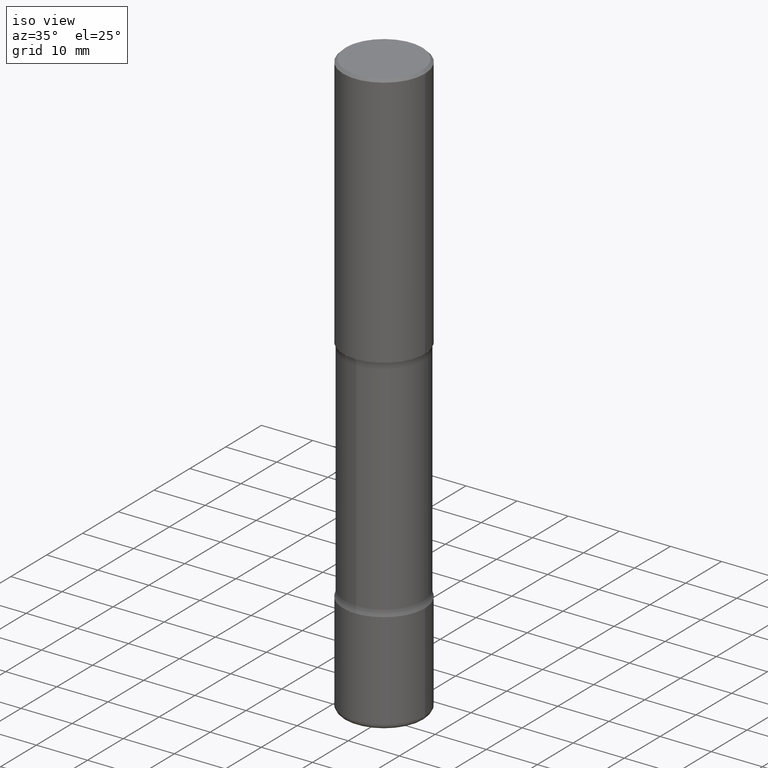
[diagram: clean part render]
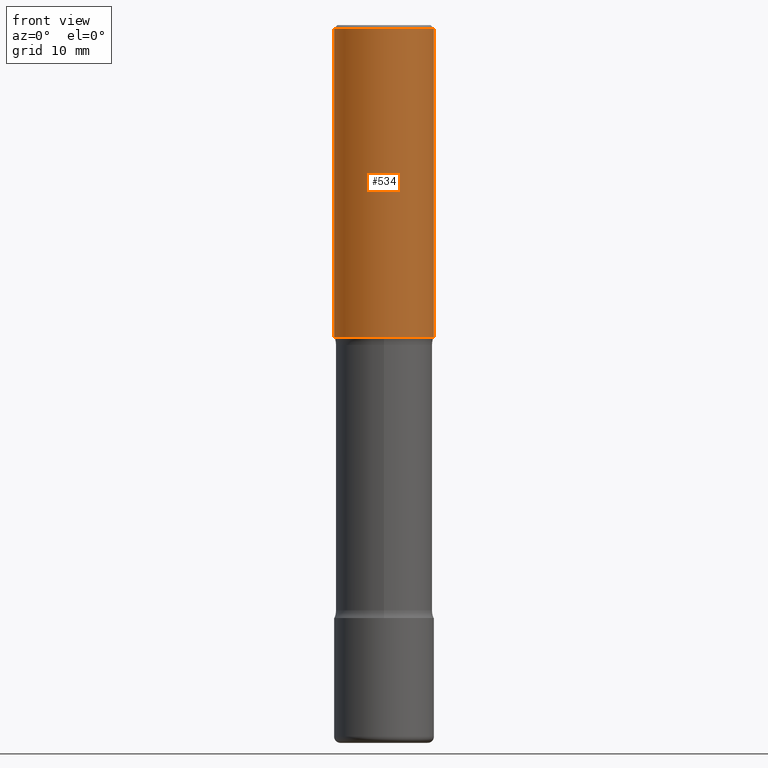
[diagram: tour spotlight — one face highlighted and labeled with its STEP entity id]
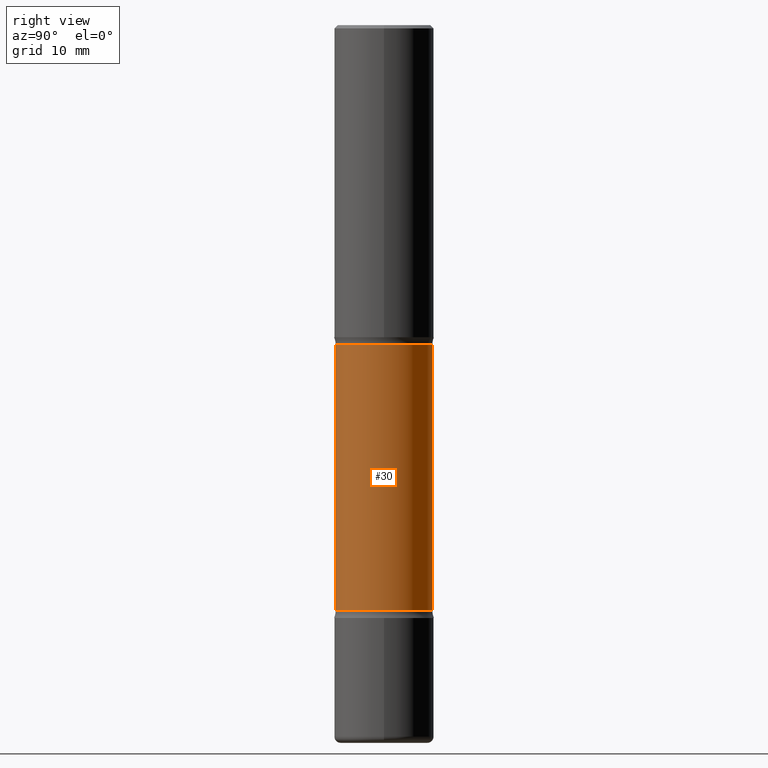
[diagram: tour spotlight — one face highlighted and labeled with its STEP entity id]
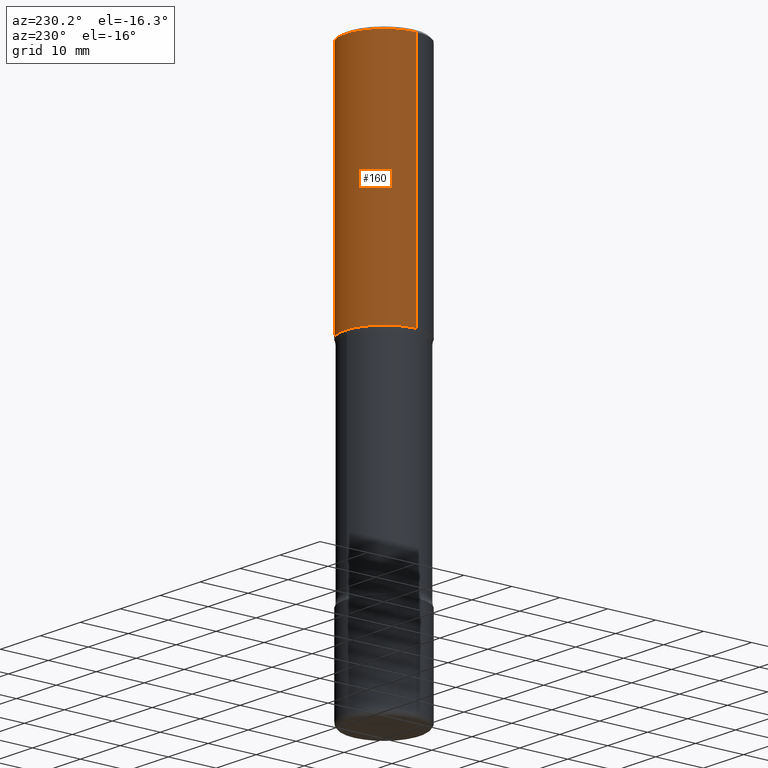
[diagram: tour spotlight — one face highlighted and labeled with its STEP entity id]
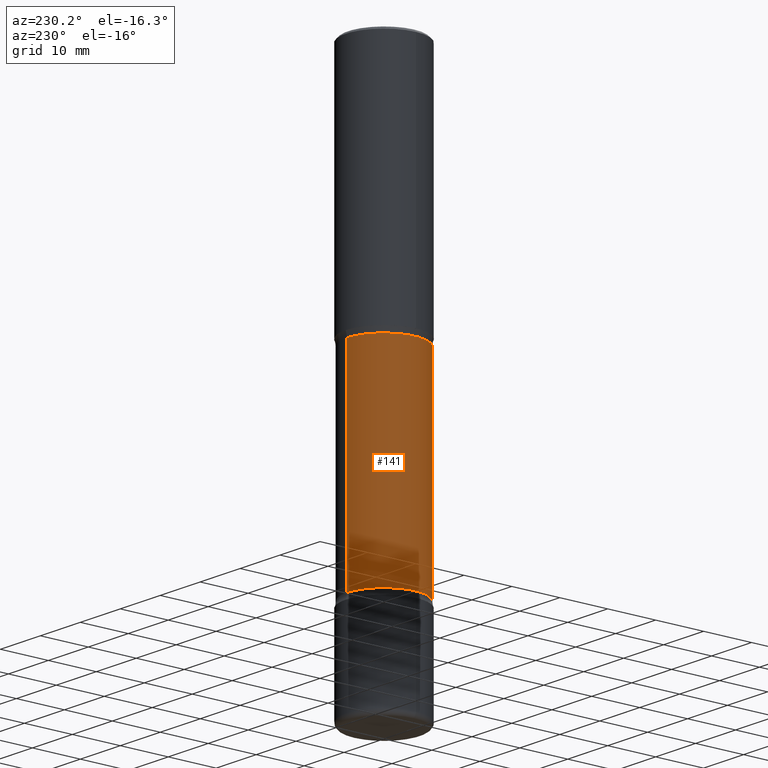
[diagram: tour spotlight — one face highlighted and labeled with its STEP entity id]
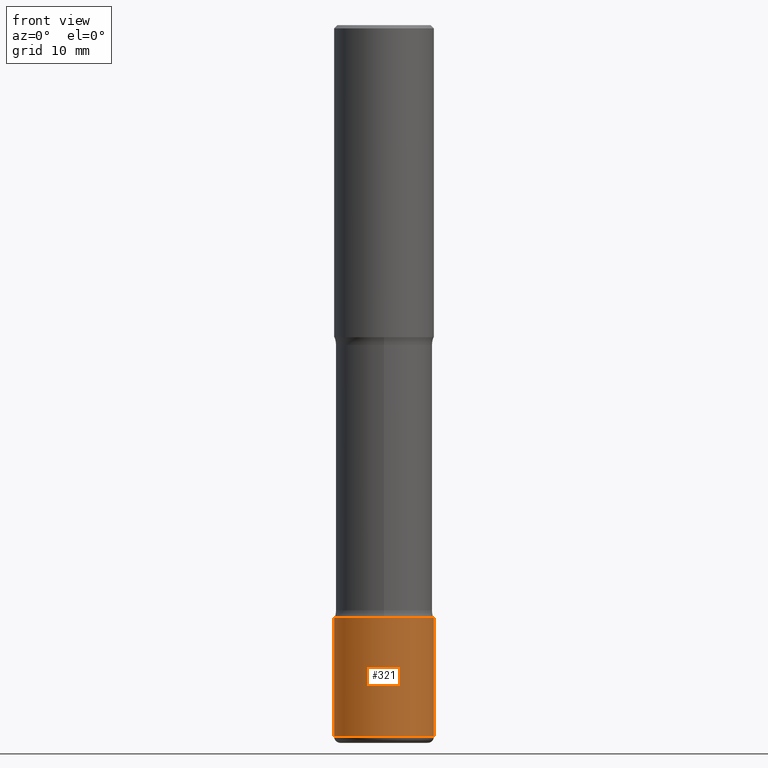
[diagram: tour spotlight — one face highlighted and labeled with its STEP entity id]
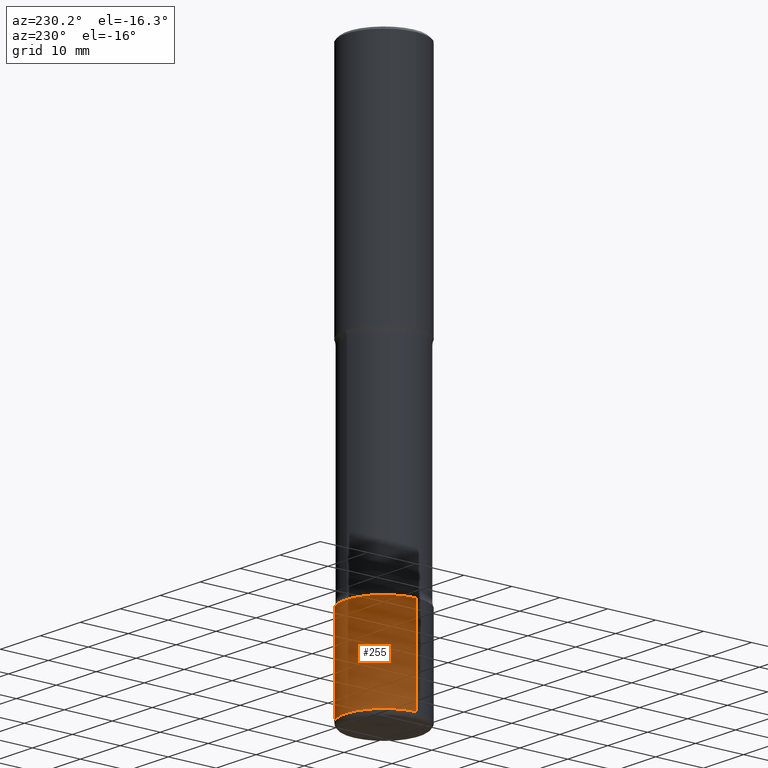
[diagram: tour spotlight — one face highlighted and labeled with its STEP entity id]
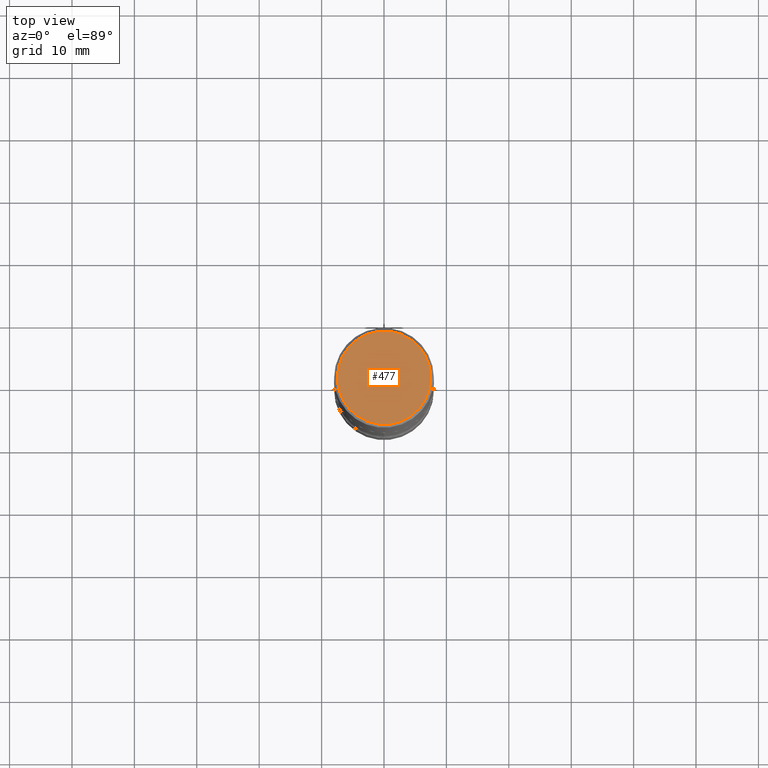
[diagram: tour spotlight — one face highlighted and labeled with its STEP entity id]
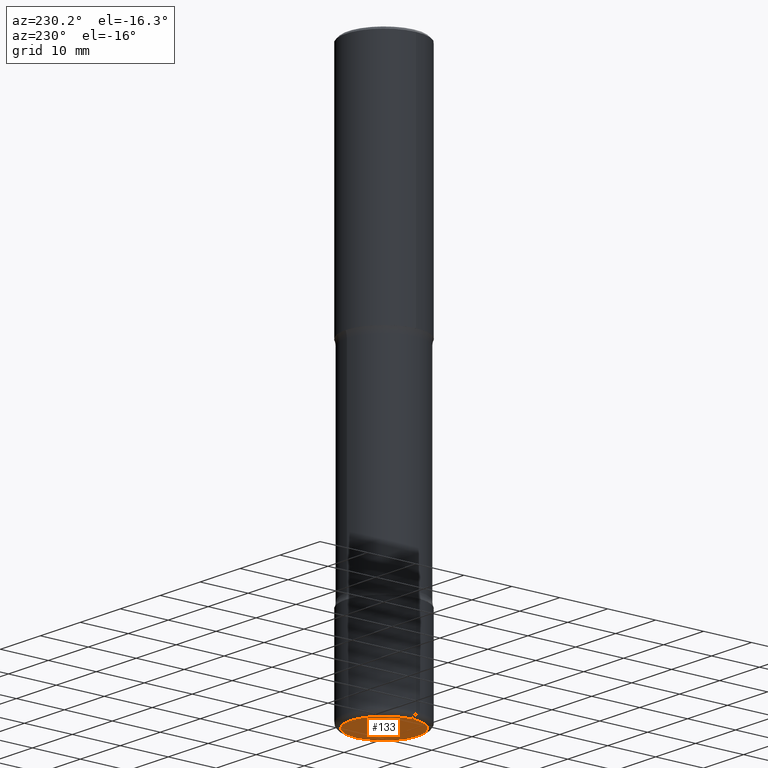
[diagram: tour spotlight — one face highlighted and labeled with its STEP entity id]
A machine part: a face-by-face anatomy tour. The part has 20 B-rep faces; the first image is the clean iso view, then the 8 largest visible faces are spotlighted one at a time (largest first), each with its STEP entity span.

Face 1 — front view, entity #534. In plain terms, the highlighted cylindrical surface (partial cylindrical patch) has radius 7.9997 mm, axis along (-0, 0, 1).
Definition (entity closure, byte-faithful):
#3 = VECTOR ( 'NONE', #293, 39.37007874015748143 ) ;
#14 = VERTEX_POINT ( 'NONE', #338 ) ;
#21 = EDGE_CURVE ( 'NONE', #14, #241, #377, .T. ) ;
#22 = VERTEX_POINT ( 'NONE', #235 ) ;
#26 = ORIENTED_EDGE ( 'NONE', *, *, #263, .F. ) ;
#44 = CARTESIAN_POINT ( 'NONE',  ( 0.3149499999999998967, -2.230543471175006266E-15, -0.02000000000000006981 ) ) ;
#62 = CARTESIAN_POINT ( 'NONE',  ( -0.3149499999999998967, 2.129454468560425784E-15, -0.02000000000000006981 ) ) ;
#80 = VERTEX_POINT ( 'NONE', #44 ) ;
#110 = DIRECTION ( 'NONE',  ( -2.445468806185136877E-29, 3.491481338843145188E-15, 1.000000000000000000 ) ) ;
#116 = ORIENTED_EDGE ( 'NONE', *, *, #424, .T. ) ;
#153 = CYLINDRICAL_SURFACE ( 'NONE', #271, 0.3149500000000000077 ) ;
#156 = AXIS2_PLACEMENT_3D ( 'NONE', #266, #490, #216 ) ;
#175 = CIRCLE ( 'NONE', #156, 0.3149499999999998967 ) ;
#184 = CIRCLE ( 'NONE', #531, 0.3149500000000001743 ) ;
#201 = DIRECTION ( 'NONE',  ( -2.445468806185136597E-29, 3.491481338843145583E-15, 1.000000000000000000 ) ) ;
#205 = FACE_OUTER_BOUND ( 'NONE', #427, .T. ) ;
#216 = DIRECTION ( 'NONE',  ( 1.000000000000000000, -6.982962677686265922E-15, 0.000000000000000000 ) ) ;
#235 = CARTESIAN_POINT ( 'NONE',  ( 0.3149500000000001743, -9.072265110850023156E-15, -1.968500000000000139 ) ) ;
#241 = VERTEX_POINT ( 'NONE', #62 ) ;
#263 = EDGE_CURVE ( 'NONE', #241, #80, #175, .T. ) ;
#266 = CARTESIAN_POINT ( 'NONE',  ( 4.890937612370289799E-31, -6.982962677686315028E-17, -0.02000000000000006981 ) ) ;
#271 = AXIS2_PLACEMENT_3D ( 'NONE', #301, #201, #386 ) ;
#282 = DIRECTION ( 'NONE',  ( 1.000000000000000000, -6.982962677686269866E-15, 0.000000000000000000 ) ) ;
#293 = DIRECTION ( 'NONE',  ( -2.445468806185136877E-29, 3.491481338843145188E-15, 1.000000000000000000 ) ) ;
#301 = CARTESIAN_POINT ( 'NONE',  ( 0.000000000000000000, 0.000000000000000000, 0.000000000000000000 ) ) ;
#316 = ORIENTED_EDGE ( 'NONE', *, *, #21, .F. ) ;
#334 = CARTESIAN_POINT ( 'NONE',  ( -0.3149500000000000077, 2.237854346276435590E-15, -1.549218606675782676E-29 ) ) ;
#338 = CARTESIAN_POINT ( 'NONE',  ( -0.3149500000000001743, -1.233550974868359743E-15, -1.968500000000000139 ) ) ;
#344 = VECTOR ( 'NONE', #110, 39.37007874015748143 ) ;
#375 = LINE ( 'NONE', #462, #344 ) ;
#377 = LINE ( 'NONE', #334, #3 ) ;
#379 = EDGE_CURVE ( 'NONE', #22, #80, #375, .T. ) ;
#386 = DIRECTION ( 'NONE',  ( 1.000000000000000000, -6.982962677686266711E-15, 4.876176775795936353E-29 ) ) ;
#414 = DIRECTION ( 'NONE',  ( -2.445468806185136597E-29, 3.491481338843145583E-15, 1.000000000000000000 ) ) ;
#424 = EDGE_CURVE ( 'NONE', #14, #22, #184, .T. ) ;
#427 = EDGE_LOOP ( 'NONE', ( #316, #116, #532, #26 ) ) ;
#460 = CARTESIAN_POINT ( 'NONE',  ( 4.813905344975441835E-29, -6.872981015512731707E-15, -1.968500000000000139 ) ) ;
#462 = CARTESIAN_POINT ( 'NONE',  ( 0.3149500000000000077, -2.199284095337289871E-15, 1.535751875536930130E-29 ) ) ;
#490 = DIRECTION ( 'NONE',  ( -2.445468806185136597E-29, 3.491481338843145583E-15, 1.000000000000000000 ) ) ;
#531 = AXIS2_PLACEMENT_3D ( 'NONE', #460, #414, #282 ) ;
#532 = ORIENTED_EDGE ( 'NONE', *, *, #379, .T. ) ;
#534 = ADVANCED_FACE ( 'NONE', ( #205 ), #153, .T. ) ;

Face 2 — right view, entity #30. In plain terms, the highlighted cylindrical surface (partial cylindrical patch) has radius 7.747 mm, axis along (0, -0, -1).
Definition (entity closure, byte-faithful):
#12 = CARTESIAN_POINT ( 'NONE',  ( -2.126582866859139470E-15, -0.3050000000000128719, -3.691327743043725906 ) ) ;
#30 = ADVANCED_FACE ( 'NONE', ( #245 ), #106, .T. ) ;
#41 = AXIS2_PLACEMENT_3D ( 'NONE', #309, #453, #222 ) ;
#54 = EDGE_CURVE ( 'NONE', #181, #543, #111, .T. ) ;
#102 = CARTESIAN_POINT ( 'NONE',  ( -2.092451889320205392E-15, -0.3050000000000157030, -4.527599999999998737 ) ) ;
#106 = CYLINDRICAL_SURFACE ( 'NONE', #268, 0.3049999999999999378 ) ;
#108 = DIRECTION ( 'NONE',  ( 2.510864649412157600E-29, -3.397830769241806549E-15, -1.000000000000000000 ) ) ;
#111 = LINE ( 'NONE', #380, #412 ) ;
#113 = DIRECTION ( 'NONE',  ( 2.510864649412157600E-29, -3.397830769241806549E-15, -1.000000000000000000 ) ) ;
#122 = AXIS2_PLACEMENT_3D ( 'NONE', #527, #444, #354 ) ;
#130 = ORIENTED_EDGE ( 'NONE', *, *, #234, .T. ) ;
#143 = VERTEX_POINT ( 'NONE', #296 ) ;
#146 = ORIENTED_EDGE ( 'NONE', *, *, #202, .F. ) ;
#149 = DIRECTION ( 'NONE',  ( 2.510864649412157880E-29, -3.397830769241806549E-15, -1.000000000000000000 ) ) ;
#181 = VERTEX_POINT ( 'NONE', #455 ) ;
#200 = DIRECTION ( 'NONE',  ( 6.982962677686266711E-15, 1.000000000000000000, -3.582751467100674095E-15 ) ) ;
#202 = EDGE_CURVE ( 'NONE', #543, #290, #299, .T. ) ;
#222 = DIRECTION ( 'NONE',  ( 6.982962677686266711E-15, 1.000000000000000000, -3.582751467100673306E-15 ) ) ;
#234 = EDGE_CURVE ( 'NONE', #181, #143, #308, .T. ) ;
#245 = FACE_OUTER_BOUND ( 'NONE', #364, .T. ) ;
#259 = VECTOR ( 'NONE', #108, 39.37007874015748143 ) ;
#268 = AXIS2_PLACEMENT_3D ( 'NONE', #420, #149, #200 ) ;
#290 = VERTEX_POINT ( 'NONE', #12 ) ;
#292 = CARTESIAN_POINT ( 'NONE',  ( 2.129803616694401198E-15, 0.3049999999999870592, -3.691327743043728127 ) ) ;
#296 = CARTESIAN_POINT ( 'NONE',  ( -2.126582866859183647E-15, -0.3050000000000072098, -2.017372256956272647 ) ) ;
#299 = CIRCLE ( 'NONE', #122, 0.3049999999999999378 ) ;
#308 = CIRCLE ( 'NONE', #41, 0.3049999999999999933 ) ;
#309 = CARTESIAN_POINT ( 'NONE',  ( 4.820755151858623476E-29, -7.204961388123744804E-15, -2.017372256956273979 ) ) ;
#354 = DIRECTION ( 'NONE',  ( 6.982962677686266711E-15, 1.000000000000000000, -3.582751467100674095E-15 ) ) ;
#364 = EDGE_LOOP ( 'NONE', ( #130, #539, #146, #469 ) ) ;
#380 = CARTESIAN_POINT ( 'NONE',  ( 2.129803616694422103E-15, 0.3049999999999842282, -4.527600000000001401 ) ) ;
#412 = VECTOR ( 'NONE', #113, 39.37007874015748143 ) ;
#420 = CARTESIAN_POINT ( 'NONE',  ( 1.112359725384078225E-28, -1.573429045124212958E-14, -4.527600000000000513 ) ) ;
#423 = LINE ( 'NONE', #102, #259 ) ;
#444 = DIRECTION ( 'NONE',  ( 2.510864649412157880E-29, -3.397830769241806549E-15, -1.000000000000000000 ) ) ;
#453 = DIRECTION ( 'NONE',  ( 2.510864649412157880E-29, -3.397830769241806549E-15, -1.000000000000000000 ) ) ;
#455 = CARTESIAN_POINT ( 'NONE',  ( 2.129803616694359388E-15, 0.3049999999999927769, -2.017372256956274867 ) ) ;
#458 = EDGE_CURVE ( 'NONE', #143, #290, #423, .T. ) ;
#469 = ORIENTED_EDGE ( 'NONE', *, *, #54, .F. ) ;
#527 = CARTESIAN_POINT ( 'NONE',  ( 9.023830806565153848E-29, -1.289277884509281722E-14, -3.691327743043726795 ) ) ;
#539 = ORIENTED_EDGE ( 'NONE', *, *, #458, .T. ) ;
#543 = VERTEX_POINT ( 'NONE', #292 ) ;

Face 3 — auxiliary view, entity #160. In plain terms, the highlighted cylindrical surface (partial cylindrical patch) has radius 7.9997 mm, axis along (-0, 0, 1).
Definition (entity closure, byte-faithful):
#3 = VECTOR ( 'NONE', #293, 39.37007874015748143 ) ;
#14 = VERTEX_POINT ( 'NONE', #338 ) ;
#21 = EDGE_CURVE ( 'NONE', #14, #241, #377, .T. ) ;
#22 = VERTEX_POINT ( 'NONE', #235 ) ;
#44 = CARTESIAN_POINT ( 'NONE',  ( 0.3149499999999998967, -2.230543471175006266E-15, -0.02000000000000006981 ) ) ;
#47 = DIRECTION ( 'NONE',  ( 1.000000000000000000, -6.982962677686266711E-15, 4.876176775795936353E-29 ) ) ;
#62 = CARTESIAN_POINT ( 'NONE',  ( -0.3149499999999998967, 2.129454468560425784E-15, -0.02000000000000006981 ) ) ;
#80 = VERTEX_POINT ( 'NONE', #44 ) ;
#95 = DIRECTION ( 'NONE',  ( -2.445468806185136597E-29, 3.491481338843145583E-15, 1.000000000000000000 ) ) ;
#109 = ORIENTED_EDGE ( 'NONE', *, *, #379, .F. ) ;
#110 = DIRECTION ( 'NONE',  ( -2.445468806185136877E-29, 3.491481338843145188E-15, 1.000000000000000000 ) ) ;
#119 = DIRECTION ( 'NONE',  ( 1.000000000000000000, -6.982962677686269866E-15, 0.000000000000000000 ) ) ;
#128 = ORIENTED_EDGE ( 'NONE', *, *, #21, .T. ) ;
#160 = ADVANCED_FACE ( 'NONE', ( #298 ), #256, .T. ) ;
#168 = EDGE_CURVE ( 'NONE', #22, #14, #240, .T. ) ;
#219 = EDGE_CURVE ( 'NONE', #80, #241, #467, .T. ) ;
#224 = ORIENTED_EDGE ( 'NONE', *, *, #168, .T. ) ;
#230 = AXIS2_PLACEMENT_3D ( 'NONE', #362, #95, #537 ) ;
#235 = CARTESIAN_POINT ( 'NONE',  ( 0.3149500000000001743, -9.072265110850023156E-15, -1.968500000000000139 ) ) ;
#240 = CIRCLE ( 'NONE', #384, 0.3149500000000001743 ) ;
#241 = VERTEX_POINT ( 'NONE', #62 ) ;
#256 = CYLINDRICAL_SURFACE ( 'NONE', #486, 0.3149500000000000077 ) ;
#293 = DIRECTION ( 'NONE',  ( -2.445468806185136877E-29, 3.491481338843145188E-15, 1.000000000000000000 ) ) ;
#298 = FACE_OUTER_BOUND ( 'NONE', #448, .T. ) ;
#334 = CARTESIAN_POINT ( 'NONE',  ( -0.3149500000000000077, 2.237854346276435590E-15, -1.549218606675782676E-29 ) ) ;
#338 = CARTESIAN_POINT ( 'NONE',  ( -0.3149500000000001743, -1.233550974868359743E-15, -1.968500000000000139 ) ) ;
#341 = CARTESIAN_POINT ( 'NONE',  ( 4.813905344975441835E-29, -6.872981015512731707E-15, -1.968500000000000139 ) ) ;
#344 = VECTOR ( 'NONE', #110, 39.37007874015748143 ) ;
#362 = CARTESIAN_POINT ( 'NONE',  ( 4.890937612370289799E-31, -6.982962677686315028E-17, -0.02000000000000006981 ) ) ;
#375 = LINE ( 'NONE', #462, #344 ) ;
#377 = LINE ( 'NONE', #334, #3 ) ;
#379 = EDGE_CURVE ( 'NONE', #22, #80, #375, .T. ) ;
#384 = AXIS2_PLACEMENT_3D ( 'NONE', #341, #391, #119 ) ;
#387 = CARTESIAN_POINT ( 'NONE',  ( 0.000000000000000000, 0.000000000000000000, 0.000000000000000000 ) ) ;
#391 = DIRECTION ( 'NONE',  ( -2.445468806185136597E-29, 3.491481338843145583E-15, 1.000000000000000000 ) ) ;
#429 = ORIENTED_EDGE ( 'NONE', *, *, #219, .F. ) ;
#438 = DIRECTION ( 'NONE',  ( -2.445468806185136597E-29, 3.491481338843145583E-15, 1.000000000000000000 ) ) ;
#448 = EDGE_LOOP ( 'NONE', ( #224, #128, #429, #109 ) ) ;
#462 = CARTESIAN_POINT ( 'NONE',  ( 0.3149500000000000077, -2.199284095337289871E-15, 1.535751875536930130E-29 ) ) ;
#467 = CIRCLE ( 'NONE', #230, 0.3149499999999998967 ) ;
#486 = AXIS2_PLACEMENT_3D ( 'NONE', #387, #438, #47 ) ;
#537 = DIRECTION ( 'NONE',  ( 1.000000000000000000, -6.982962677686265922E-15, 0.000000000000000000 ) ) ;

Face 4 — auxiliary view, entity #141. In plain terms, the highlighted cylindrical surface (partial cylindrical patch) has radius 7.747 mm, axis along (0, -0, -1).
Definition (entity closure, byte-faithful):
#12 = CARTESIAN_POINT ( 'NONE',  ( -2.126582866859139470E-15, -0.3050000000000128719, -3.691327743043725906 ) ) ;
#49 = CYLINDRICAL_SURFACE ( 'NONE', #67, 0.3049999999999999378 ) ;
#50 = AXIS2_PLACEMENT_3D ( 'NONE', #370, #104, #547 ) ;
#54 = EDGE_CURVE ( 'NONE', #181, #543, #111, .T. ) ;
#67 = AXIS2_PLACEMENT_3D ( 'NONE', #302, #480, #254 ) ;
#102 = CARTESIAN_POINT ( 'NONE',  ( -2.092451889320205392E-15, -0.3050000000000157030, -4.527599999999998737 ) ) ;
#104 = DIRECTION ( 'NONE',  ( 2.510864649412157880E-29, -3.397830769241806549E-15, -1.000000000000000000 ) ) ;
#108 = DIRECTION ( 'NONE',  ( 2.510864649412157600E-29, -3.397830769241806549E-15, -1.000000000000000000 ) ) ;
#111 = LINE ( 'NONE', #380, #412 ) ;
#113 = DIRECTION ( 'NONE',  ( 2.510864649412157600E-29, -3.397830769241806549E-15, -1.000000000000000000 ) ) ;
#120 = EDGE_CURVE ( 'NONE', #290, #543, #239, .T. ) ;
#141 = ADVANCED_FACE ( 'NONE', ( #206 ), #49, .T. ) ;
#143 = VERTEX_POINT ( 'NONE', #296 ) ;
#164 = CARTESIAN_POINT ( 'NONE',  ( 9.023830806565153848E-29, -1.289277884509281722E-14, -3.691327743043726795 ) ) ;
#176 = ORIENTED_EDGE ( 'NONE', *, *, #54, .T. ) ;
#179 = ORIENTED_EDGE ( 'NONE', *, *, #120, .F. ) ;
#181 = VERTEX_POINT ( 'NONE', #455 ) ;
#193 = DIRECTION ( 'NONE',  ( 6.982962677686266711E-15, 1.000000000000000000, -3.582751467100674095E-15 ) ) ;
#194 = AXIS2_PLACEMENT_3D ( 'NONE', #164, #538, #193 ) ;
#206 = FACE_OUTER_BOUND ( 'NONE', #411, .T. ) ;
#239 = CIRCLE ( 'NONE', #194, 0.3049999999999999378 ) ;
#254 = DIRECTION ( 'NONE',  ( 6.982962677686266711E-15, 1.000000000000000000, -3.582751467100674095E-15 ) ) ;
#259 = VECTOR ( 'NONE', #108, 39.37007874015748143 ) ;
#290 = VERTEX_POINT ( 'NONE', #12 ) ;
#292 = CARTESIAN_POINT ( 'NONE',  ( 2.129803616694401198E-15, 0.3049999999999870592, -3.691327743043728127 ) ) ;
#296 = CARTESIAN_POINT ( 'NONE',  ( -2.126582866859183647E-15, -0.3050000000000072098, -2.017372256956272647 ) ) ;
#302 = CARTESIAN_POINT ( 'NONE',  ( 1.112359725384078225E-28, -1.573429045124212958E-14, -4.527600000000000513 ) ) ;
#310 = ORIENTED_EDGE ( 'NONE', *, *, #458, .F. ) ;
#370 = CARTESIAN_POINT ( 'NONE',  ( 4.820755151858623476E-29, -7.204961388123744804E-15, -2.017372256956273979 ) ) ;
#380 = CARTESIAN_POINT ( 'NONE',  ( 2.129803616694422103E-15, 0.3049999999999842282, -4.527600000000001401 ) ) ;
#411 = EDGE_LOOP ( 'NONE', ( #310, #510, #176, #179 ) ) ;
#412 = VECTOR ( 'NONE', #113, 39.37007874015748143 ) ;
#415 = CIRCLE ( 'NONE', #50, 0.3049999999999999933 ) ;
#423 = LINE ( 'NONE', #102, #259 ) ;
#455 = CARTESIAN_POINT ( 'NONE',  ( 2.129803616694359388E-15, 0.3049999999999927769, -2.017372256956274867 ) ) ;
#458 = EDGE_CURVE ( 'NONE', #143, #290, #423, .T. ) ;
#466 = EDGE_CURVE ( 'NONE', #143, #181, #415, .T. ) ;
#480 = DIRECTION ( 'NONE',  ( 2.510864649412157880E-29, -3.397830769241806549E-15, -1.000000000000000000 ) ) ;
#510 = ORIENTED_EDGE ( 'NONE', *, *, #466, .T. ) ;
#538 = DIRECTION ( 'NONE',  ( 2.510864649412157880E-29, -3.397830769241806549E-15, -1.000000000000000000 ) ) ;
#543 = VERTEX_POINT ( 'NONE', #292 ) ;
#547 = DIRECTION ( 'NONE',  ( 6.982962677686266711E-15, 1.000000000000000000, -3.582751467100673306E-15 ) ) ;

Face 5 — front view, entity #321. In plain terms, the highlighted cylindrical surface (partial cylindrical patch) has radius 7.9997 mm, axis along (-0, 0, 1).
Definition (entity closure, byte-faithful):
#7 = DIRECTION ( 'NONE',  ( -2.445468806185136877E-29, 3.491481338843145188E-15, 1.000000000000000000 ) ) ;
#18 = CARTESIAN_POINT ( 'NONE',  ( 9.146542428893648262E-29, -1.305883850354113437E-14, -3.740200000000000191 ) ) ;
#23 = AXIS2_PLACEMENT_3D ( 'NONE', #36, #115, #40 ) ;
#36 = CARTESIAN_POINT ( 'NONE',  ( 1.097575309592013175E-28, -1.567046654499580783E-14, -4.488200000000000855 ) ) ;
#40 = DIRECTION ( 'NONE',  ( 1.000000000000000000, -6.982962677686265922E-15, 0.000000000000000000 ) ) ;
#53 = CARTESIAN_POINT ( 'NONE',  ( 0.000000000000000000, 0.000000000000000000, 0.000000000000000000 ) ) ;
#68 = AXIS2_PLACEMENT_3D ( 'NONE', #53, #144, #150 ) ;
#74 = ORIENTED_EDGE ( 'NONE', *, *, #148, .F. ) ;
#103 = ORIENTED_EDGE ( 'NONE', *, *, #492, .T. ) ;
#115 = DIRECTION ( 'NONE',  ( -2.445468806185136597E-29, 3.491481338843145583E-15, 1.000000000000000000 ) ) ;
#135 = LINE ( 'NONE', #398, #270 ) ;
#144 = DIRECTION ( 'NONE',  ( -2.445468806185136597E-29, 3.491481338843145583E-15, 1.000000000000000000 ) ) ;
#148 = EDGE_CURVE ( 'NONE', #191, #472, #304, .T. ) ;
#150 = DIRECTION ( 'NONE',  ( 1.000000000000000000, -6.982962677686265922E-15, 4.876176775795935232E-29 ) ) ;
#177 = FACE_OUTER_BOUND ( 'NONE', #422, .T. ) ;
#191 = VERTEX_POINT ( 'NONE', #350 ) ;
#192 = CARTESIAN_POINT ( 'NONE',  ( 0.3149500000000002298, -1.525812259887842581E-14, -3.740200000000000191 ) ) ;
#210 = CARTESIAN_POINT ( 'NONE',  ( -0.3149500000000001743, 2.237854346276436774E-15, -1.549218606675783237E-29 ) ) ;
#214 = CIRCLE ( 'NONE', #544, 0.3149500000000002298 ) ;
#238 = CARTESIAN_POINT ( 'NONE',  ( 0.3149500000000000077, -1.786975064033309928E-14, -4.488200000000000855 ) ) ;
#247 = EDGE_CURVE ( 'NONE', #472, #368, #214, .T. ) ;
#260 = CYLINDRICAL_SURFACE ( 'NONE', #68, 0.3149500000000001743 ) ;
#270 = VECTOR ( 'NONE', #7, 39.37007874015748143 ) ;
#273 = EDGE_CURVE ( 'NONE', #456, #368, #135, .T. ) ;
#304 = LINE ( 'NONE', #210, #383 ) ;
#321 = ADVANCED_FACE ( 'NONE', ( #177 ), #260, .T. ) ;
#347 = DIRECTION ( 'NONE',  ( -2.445468806185136877E-29, 3.491481338843145188E-15, 1.000000000000000000 ) ) ;
#350 = CARTESIAN_POINT ( 'NONE',  ( -0.3149500000000000077, -1.343261219871937027E-14, -4.488200000000000855 ) ) ;
#368 = VERTEX_POINT ( 'NONE', #192 ) ;
#378 = CARTESIAN_POINT ( 'NONE',  ( -0.3149500000000002298, -1.212679817799203354E-14, -3.740200000000000191 ) ) ;
#383 = VECTOR ( 'NONE', #347, 39.37007874015748143 ) ;
#398 = CARTESIAN_POINT ( 'NONE',  ( 0.3149500000000001743, -2.199284095337290660E-15, 1.535751875536930690E-29 ) ) ;
#422 = EDGE_LOOP ( 'NONE', ( #74, #103, #488, #535 ) ) ;
#456 = VERTEX_POINT ( 'NONE', #238 ) ;
#472 = VERTEX_POINT ( 'NONE', #378 ) ;
#487 = DIRECTION ( 'NONE',  ( -2.445468806185136597E-29, 3.491481338843145583E-15, 1.000000000000000000 ) ) ;
#488 = ORIENTED_EDGE ( 'NONE', *, *, #273, .T. ) ;
#492 = EDGE_CURVE ( 'NONE', #191, #456, #513, .T. ) ;
#513 = CIRCLE ( 'NONE', #23, 0.3149500000000001743 ) ;
#533 = DIRECTION ( 'NONE',  ( 1.000000000000000000, -6.982962677686264344E-15, 0.000000000000000000 ) ) ;
#535 = ORIENTED_EDGE ( 'NONE', *, *, #247, .F. ) ;
#544 = AXIS2_PLACEMENT_3D ( 'NONE', #18, #487, #533 ) ;

Face 6 — auxiliary view, entity #255. In plain terms, the highlighted cylindrical surface (partial cylindrical patch) has radius 7.9997 mm, axis along (-0, 0, 1).
Definition (entity closure, byte-faithful):
#7 = DIRECTION ( 'NONE',  ( -2.445468806185136877E-29, 3.491481338843145188E-15, 1.000000000000000000 ) ) ;
#39 = ORIENTED_EDGE ( 'NONE', *, *, #481, .F. ) ;
#78 = EDGE_CURVE ( 'NONE', #456, #191, #401, .T. ) ;
#118 = DIRECTION ( 'NONE',  ( 1.000000000000000000, -6.982962677686265922E-15, 0.000000000000000000 ) ) ;
#129 = CARTESIAN_POINT ( 'NONE',  ( 0.000000000000000000, 0.000000000000000000, 0.000000000000000000 ) ) ;
#135 = LINE ( 'NONE', #398, #270 ) ;
#138 = CARTESIAN_POINT ( 'NONE',  ( 9.146542428893648262E-29, -1.305883850354113437E-14, -3.740200000000000191 ) ) ;
#148 = EDGE_CURVE ( 'NONE', #191, #472, #304, .T. ) ;
#157 = CIRCLE ( 'NONE', #366, 0.3149500000000002298 ) ;
#180 = FACE_OUTER_BOUND ( 'NONE', #463, .T. ) ;
#191 = VERTEX_POINT ( 'NONE', #350 ) ;
#192 = CARTESIAN_POINT ( 'NONE',  ( 0.3149500000000002298, -1.525812259887842581E-14, -3.740200000000000191 ) ) ;
#210 = CARTESIAN_POINT ( 'NONE',  ( -0.3149500000000001743, 2.237854346276436774E-15, -1.549218606675783237E-29 ) ) ;
#238 = CARTESIAN_POINT ( 'NONE',  ( 0.3149500000000000077, -1.786975064033309928E-14, -4.488200000000000855 ) ) ;
#255 = ADVANCED_FACE ( 'NONE', ( #180 ), #262, .T. ) ;
#262 = CYLINDRICAL_SURFACE ( 'NONE', #426, 0.3149500000000001743 ) ;
#270 = VECTOR ( 'NONE', #7, 39.37007874015748143 ) ;
#273 = EDGE_CURVE ( 'NONE', #456, #368, #135, .T. ) ;
#284 = ORIENTED_EDGE ( 'NONE', *, *, #78, .T. ) ;
#304 = LINE ( 'NONE', #210, #383 ) ;
#305 = DIRECTION ( 'NONE',  ( 1.000000000000000000, -6.982962677686265922E-15, 4.876176775795935232E-29 ) ) ;
#322 = ORIENTED_EDGE ( 'NONE', *, *, #273, .F. ) ;
#347 = DIRECTION ( 'NONE',  ( -2.445468806185136877E-29, 3.491481338843145188E-15, 1.000000000000000000 ) ) ;
#350 = CARTESIAN_POINT ( 'NONE',  ( -0.3149500000000000077, -1.343261219871937027E-14, -4.488200000000000855 ) ) ;
#359 = ORIENTED_EDGE ( 'NONE', *, *, #148, .T. ) ;
#366 = AXIS2_PLACEMENT_3D ( 'NONE', #138, #501, #457 ) ;
#368 = VERTEX_POINT ( 'NONE', #192 ) ;
#378 = CARTESIAN_POINT ( 'NONE',  ( -0.3149500000000002298, -1.212679817799203354E-14, -3.740200000000000191 ) ) ;
#383 = VECTOR ( 'NONE', #347, 39.37007874015748143 ) ;
#385 = DIRECTION ( 'NONE',  ( -2.445468806185136597E-29, 3.491481338843145583E-15, 1.000000000000000000 ) ) ;
#392 = CARTESIAN_POINT ( 'NONE',  ( 1.097575309592013175E-28, -1.567046654499580783E-14, -4.488200000000000855 ) ) ;
#398 = CARTESIAN_POINT ( 'NONE',  ( 0.3149500000000001743, -2.199284095337290660E-15, 1.535751875536930690E-29 ) ) ;
#401 = CIRCLE ( 'NONE', #476, 0.3149500000000001743 ) ;
#426 = AXIS2_PLACEMENT_3D ( 'NONE', #129, #447, #305 ) ;
#447 = DIRECTION ( 'NONE',  ( -2.445468806185136597E-29, 3.491481338843145583E-15, 1.000000000000000000 ) ) ;
#456 = VERTEX_POINT ( 'NONE', #238 ) ;
#457 = DIRECTION ( 'NONE',  ( 1.000000000000000000, -6.982962677686264344E-15, 0.000000000000000000 ) ) ;
#463 = EDGE_LOOP ( 'NONE', ( #284, #359, #39, #322 ) ) ;
#472 = VERTEX_POINT ( 'NONE', #378 ) ;
#476 = AXIS2_PLACEMENT_3D ( 'NONE', #392, #385, #118 ) ;
#481 = EDGE_CURVE ( 'NONE', #368, #472, #157, .T. ) ;
#501 = DIRECTION ( 'NONE',  ( -2.445468806185136597E-29, 3.491481338843145583E-15, 1.000000000000000000 ) ) ;

Face 7 — top view, entity #477. In plain terms, the highlighted planar face has unit normal (0, -0, -1).
Definition (entity closure, byte-faithful):
#1 = CARTESIAN_POINT ( 'NONE',  ( -0.2949499999999998789, 2.094539655171994924E-15, 1.280553747028672311E-17 ) ) ;
#20 = DIRECTION ( 'NONE',  ( 2.438088387897960049E-29, -3.491481338843145188E-15, -1.000000000000000000 ) ) ;
#35 = ORIENTED_EDGE ( 'NONE', *, *, #343, .T. ) ;
#37 = VERTEX_POINT ( 'NONE', #332 ) ;
#77 = CIRCLE ( 'NONE', #506, 0.2949499999999998789 ) ;
#112 = PLANE ( 'NONE',  #393 ) ;
#145 = AXIS2_PLACEMENT_3D ( 'NONE', #540, #396, #218 ) ;
#152 = EDGE_LOOP ( 'NONE', ( #35, #496 ) ) ;
#166 = CIRCLE ( 'NONE', #145, 0.2949499999999998789 ) ;
#182 = DIRECTION ( 'NONE',  ( -1.000000000000000000, 6.982962677686265922E-15, -4.876176775795935793E-29 ) ) ;
#218 = DIRECTION ( 'NONE',  ( 1.000000000000000000, -6.982962677686267499E-15, 4.876053491004736589E-29 ) ) ;
#257 = EDGE_CURVE ( 'NONE', #37, #559, #166, .T. ) ;
#288 = CARTESIAN_POINT ( 'NONE',  ( 2.059624841783563274E-15, 0.2949499999999998789, -1.023409652156634744E-15 ) ) ;
#332 = CARTESIAN_POINT ( 'NONE',  ( 0.2949499999999998789, -2.127023677808859286E-15, 1.280553747031588939E-17 ) ) ;
#333 = DIRECTION ( 'NONE',  ( -2.445468806185136597E-29, 3.491481338843145583E-15, 1.000000000000000000 ) ) ;
#343 = EDGE_CURVE ( 'NONE', #559, #37, #77, .T. ) ;
#365 = DIRECTION ( 'NONE',  ( 1.000000000000000000, -6.982962677686267499E-15, 4.876053491004736589E-29 ) ) ;
#393 = AXIS2_PLACEMENT_3D ( 'NONE', #288, #20, #182 ) ;
#396 = DIRECTION ( 'NONE',  ( -2.445468806185136597E-29, 3.491481338843145583E-15, 1.000000000000000000 ) ) ;
#464 = CARTESIAN_POINT ( 'NONE',  ( -3.131554243005663153E-46, 4.471029511141347348E-32, 1.280553747030124924E-17 ) ) ;
#477 = ADVANCED_FACE ( 'NONE', ( #511 ), #112, .F. ) ;
#496 = ORIENTED_EDGE ( 'NONE', *, *, #257, .T. ) ;
#506 = AXIS2_PLACEMENT_3D ( 'NONE', #464, #333, #365 ) ;
#511 = FACE_OUTER_BOUND ( 'NONE', #152, .T. ) ;
#540 = CARTESIAN_POINT ( 'NONE',  ( -3.131554243005663153E-46, 4.471029511141347348E-32, 1.280553747030124924E-17 ) ) ;
#559 = VERTEX_POINT ( 'NONE', #1 ) ;

Face 8 — auxiliary view, entity #133. In plain terms, the highlighted planar face has unit normal (0, -0, -1).
Definition (entity closure, byte-faithful):
#4 = EDGE_CURVE ( 'NONE', #514, #277, #250, .T. ) ;
#32 = AXIS2_PLACEMENT_3D ( 'NONE', #187, #198, #189 ) ;
#61 = ORIENTED_EDGE ( 'NONE', *, *, #4, .F. ) ;
#121 = CARTESIAN_POINT ( 'NONE',  ( -0.2755500000000001282, -1.364137130003931840E-14, -4.527599999999999625 ) ) ;
#133 = ADVANCED_FACE ( 'NONE', ( #470 ), #541, .T. ) ;
#155 = DIRECTION ( 'NONE',  ( -2.445468806185136597E-29, 3.491481338843145583E-15, 1.000000000000000000 ) ) ;
#161 = DIRECTION ( 'NONE',  ( -1.000000000000000000, 6.982962677686265922E-15, -4.876176775795935793E-29 ) ) ;
#187 = CARTESIAN_POINT ( 'NONE',  ( 1.107210456688382298E-28, -1.580803090974622389E-14, -4.527599999999999625 ) ) ;
#189 = DIRECTION ( 'NONE',  ( 1.000000000000000000, -6.982962677686273021E-15, 0.000000000000000000 ) ) ;
#196 = DIRECTION ( 'NONE',  ( 1.000000000000000000, -6.982962677686273021E-15, 0.000000000000000000 ) ) ;
#198 = DIRECTION ( 'NONE',  ( -2.445468806185136597E-29, 3.491481338843145583E-15, 1.000000000000000000 ) ) ;
#250 = CIRCLE ( 'NONE', #325, 0.2755500000000001282 ) ;
#277 = VERTEX_POINT ( 'NONE', #312 ) ;
#307 = AXIS2_PLACEMENT_3D ( 'NONE', #504, #390, #161 ) ;
#312 = CARTESIAN_POINT ( 'NONE',  ( 0.2755500000000001282, -1.773218627558267691E-14, -4.527599999999999625 ) ) ;
#325 = AXIS2_PLACEMENT_3D ( 'NONE', #465, #155, #196 ) ;
#390 = DIRECTION ( 'NONE',  ( 2.438088387897960049E-29, -3.491481338843145188E-15, -1.000000000000000000 ) ) ;
#431 = EDGE_LOOP ( 'NONE', ( #548, #61 ) ) ;
#441 = EDGE_CURVE ( 'NONE', #277, #514, #521, .T. ) ;
#465 = CARTESIAN_POINT ( 'NONE',  ( 1.107210456688382298E-28, -1.580803090974622389E-14, -4.527599999999999625 ) ) ;
#470 = FACE_OUTER_BOUND ( 'NONE', #431, .T. ) ;
#504 = CARTESIAN_POINT ( 'NONE',  ( 1.734104124256122727E-28, -6.830556784459116821E-15, -4.527600000000000513 ) ) ;
#514 = VERTEX_POINT ( 'NONE', #121 ) ;
#521 = CIRCLE ( 'NONE', #32, 0.2755500000000001282 ) ;
#541 = PLANE ( 'NONE',  #307 ) ;
#548 = ORIENTED_EDGE ( 'NONE', *, *, #441, .F. ) ;